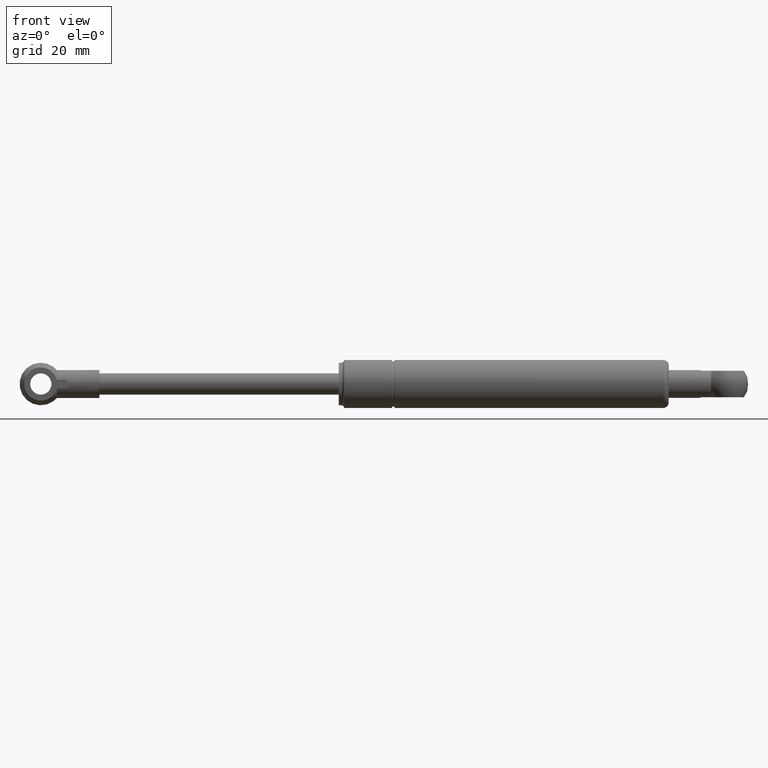
[diagram: clean part render]
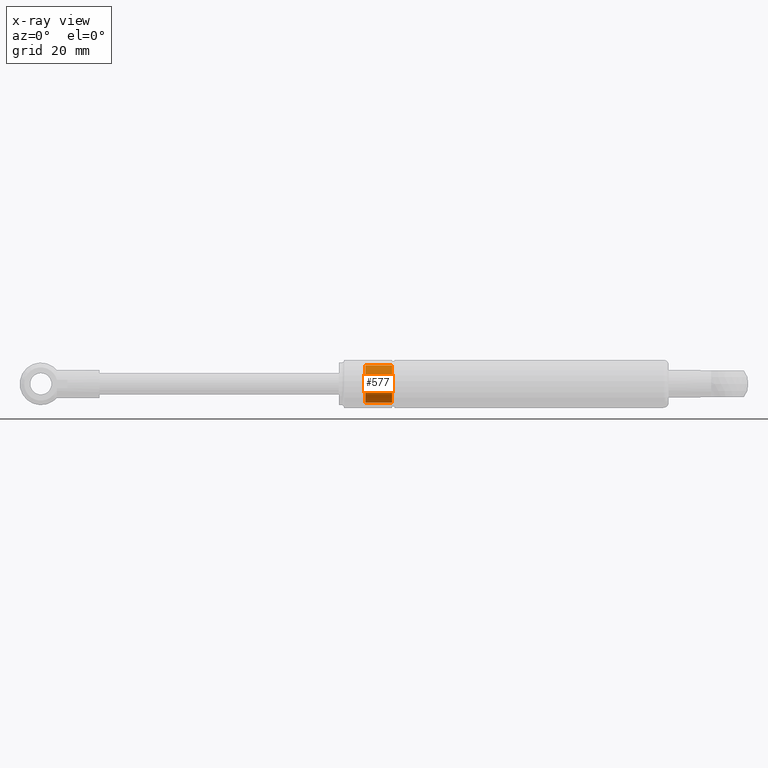
[diagram: x-ray — body ghosted, one internal face saturated and labeled with its STEP entity id]
A machine part, front view, then the same camera in x-ray: the body is ghosted and one INTERNAL B-rep face — a face not visible from any outside direction — is saturated and labeled: STEP entity #577.
In plain terms, the highlighted cylindrical surface (bore or boss wall) has radius 7 mm, axis along (-1, 0, 0).
Its self-contained STEP definition (entity closure, byte-faithful):
#72=CYLINDRICAL_SURFACE('',#659,6.99999999999996);
#109=FACE_BOUND('',#223,.T.);
#151=FACE_OUTER_BOUND('',#222,.T.);
#222=EDGE_LOOP('',(#443));
#223=EDGE_LOOP('',(#444));
#274=CIRCLE('',#655,6.99999999999996);
#276=CIRCLE('',#658,6.99999999999997);
#317=VERTEX_POINT('',#980);
#319=VERTEX_POINT('',#985);
#363=EDGE_CURVE('',#317,#317,#274,.T.);
#365=EDGE_CURVE('',#319,#319,#276,.T.);
#443=ORIENTED_EDGE('',*,*,#363,.F.);
#444=ORIENTED_EDGE('',*,*,#365,.T.);
#577=ADVANCED_FACE('',(#151,#109),#72,.T.);
#655=AXIS2_PLACEMENT_3D('',#981,#813,#814);
#658=AXIS2_PLACEMENT_3D('',#986,#819,#820);
#659=AXIS2_PLACEMENT_3D('',#987,#821,#822);
#813=DIRECTION('center_axis',(-1.,0.,3.05060562111315E-16));
#814=DIRECTION('ref_axis',(3.17206578464332E-16,0.,1.));
#819=DIRECTION('center_axis',(-1.,0.,3.05060562111315E-16));
#820=DIRECTION('ref_axis',(3.17206578464332E-16,0.,1.));
#821=DIRECTION('center_axis',(-1.,0.,3.05060562111315E-16));
#822=DIRECTION('ref_axis',(3.17206578464332E-16,0.,1.));
#980=CARTESIAN_POINT('',(100.,0.,6.99999999999996));
#981=CARTESIAN_POINT('Origin',(100.,0.,1.54507729788466E-30));
#985=CARTESIAN_POINT('',(110.,0.,6.99999999999996));
#986=CARTESIAN_POINT('Origin',(110.,0.,-3.05060562111315E-15));
#987=CARTESIAN_POINT('Origin',(105.,0.,-1.52530281055658E-15));